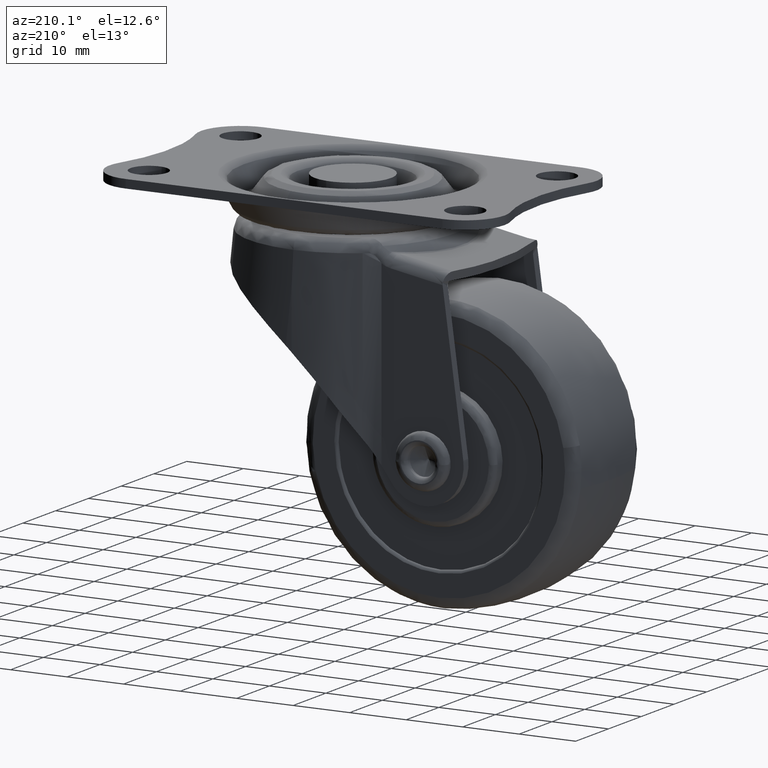
[diagram: clean part render]
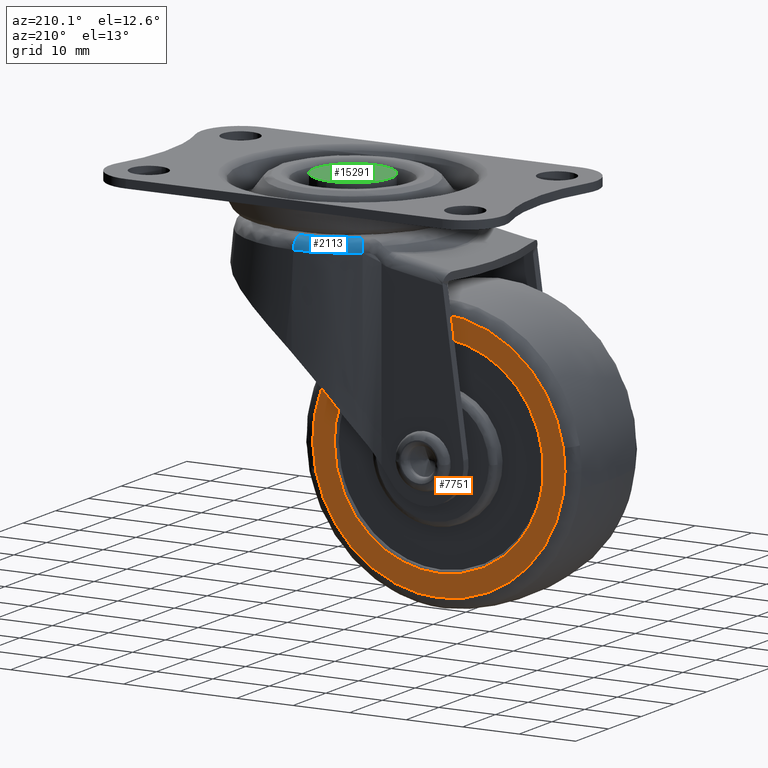
[diagram: same view with three faces highlighted in distinct colors, each labeled with its STEP entity id]
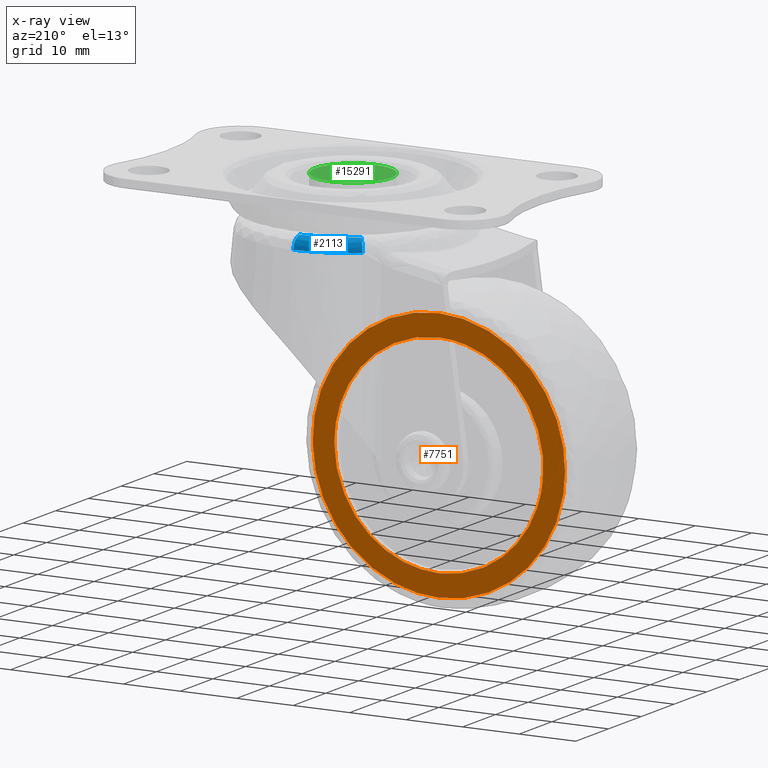
[diagram: x-ray of the same camera — body ghosted, the three highlighted faces saturated]
A machine part, auxiliary view with three faces highlighted in distinct colors.
The next image is the same camera in x-ray (body ghosted, the three faces saturated) — at least one of them is partly hidden behind the body in this view.
Their STEP definitions:

[orange] entity #7751 — the highlighted face is a freeform B-spline surface patch.
#6425=CARTESIAN_POINT('',(0.787601987224201,10.0,-43.385546442987611));
#6426=VERTEX_POINT('',#6425);
#6427=CARTESIAN_POINT('',(-21.0,10.0,-60.828640000000000));
#6428=VERTEX_POINT('',#6427);
#6429=CARTESIAN_POINT('',(0.787601987224201,10.0,-43.385546442987597));
#6430=CARTESIAN_POINT('',(-3.123752911280432,10.0,-60.828640000000000));
#6431=CARTESIAN_POINT('',(-21.0,10.0,-60.828640000000000));
#6439=(BOUNDED_CURVE()B_SPLINE_CURVE(2,(#6429,#6430,#6431),.UNSPECIFIED.,.F.,.U.)B_SPLINE_CURVE_WITH_KNOTS((3,3),(0.287436176724440,0.500000000000000),.UNSPECIFIED.)CURVE()GEOMETRIC_REPRESENTATION_ITEM()RATIONAL_B_SPLINE_CURVE((0.925416950446786,0.750965990390109,1.0))REPRESENTATION_ITEM(''));
#6440=EDGE_CURVE('',#6426,#6428,#6439,.T.);
#6504=CARTESIAN_POINT('',(-43.031355242389857,10.0,-34.868533287541460));
#6505=VERTEX_POINT('',#6504);
#6519=CARTESIAN_POINT('',(-21.0,10.0,-60.828640000000000));
#6520=CARTESIAN_POINT('',(-43.328640000000000,10.0,-60.828639999999993));
#6521=CARTESIAN_POINT('',(-43.328640000000000,10.0,-38.500000000000000));
#6522=CARTESIAN_POINT('',(-43.328640000000007,10.0,-36.672098250918637));
#6523=CARTESIAN_POINT('',(-43.031355242389857,10.0,-34.868533287541460));
#6531=(BOUNDED_CURVE()B_SPLINE_CURVE(2,(#6519,#6520,#6521,#6522,#6523),.UNSPECIFIED.,.F.,.U.)B_SPLINE_CURVE_WITH_KNOTS((3,2,3),(0.500000000000000,0.750000000000000,0.777993891200778),.UNSPECIFIED.)CURVE()GEOMETRIC_REPRESENTATION_ITEM()RATIONAL_B_SPLINE_CURVE((1.0,0.707106781186547,1.0,0.967203116396362,0.941751131923322))REPRESENTATION_ITEM(''));
#6532=EDGE_CURVE('',#6428,#6505,#6531,.T.);
#6566=CARTESIAN_POINT('',(-21.0,10.0,-16.171360000000000));
#6567=VERTEX_POINT('',#6566);
#6568=CARTESIAN_POINT('',(-21.0,10.0,-16.171360000000000));
#6569=CARTESIAN_POINT('',(1.328639999999996,10.0,-16.171360000000004));
#6570=CARTESIAN_POINT('',(1.328639999999999,10.0,-38.500000000000000));
#6571=CARTESIAN_POINT('',(1.328639999999999,10.0,-40.972731193975328));
#6572=CARTESIAN_POINT('',(0.787601987224201,10.000000000000002,-43.385546442987611));
#6580=(BOUNDED_CURVE()B_SPLINE_CURVE(2,(#6568,#6569,#6570,#6571,#6572),.UNSPECIFIED.,.F.,.U.)B_SPLINE_CURVE_WITH_KNOTS((3,2,3),(0.0,0.250000000000000,0.287436176724440),.UNSPECIFIED.)CURVE()GEOMETRIC_REPRESENTATION_ITEM()RATIONAL_B_SPLINE_CURVE((1.0,0.707106781186547,1.0,0.956140790796438,0.925416950446786))REPRESENTATION_ITEM(''));
#6581=EDGE_CURVE('',#6567,#6426,#6580,.T.);
#6583=CARTESIAN_POINT('',(-43.031355242389864,10.000000000000002,-34.868533287541460));
#6584=CARTESIAN_POINT('',(-39.949467555984143,10.0,-16.171360000000007));
#6585=CARTESIAN_POINT('',(-21.0,10.0,-16.171360000000000));
#6593=(BOUNDED_CURVE()B_SPLINE_CURVE(2,(#6583,#6584,#6585),.UNSPECIFIED.,.F.,.U.)B_SPLINE_CURVE_WITH_KNOTS((3,3),(0.777993891200778,1.0),.UNSPECIFIED.)CURVE()GEOMETRIC_REPRESENTATION_ITEM()RATIONAL_B_SPLINE_CURVE((0.941751131923323,0.739903664790185,1.0))REPRESENTATION_ITEM(''));
#6594=EDGE_CURVE('',#6505,#6567,#6593,.T.);
#6660=CARTESIAN_POINT('',(-39.376265316833653,10.0,-40.636088242484213));
#6661=VERTEX_POINT('',#6660);
#6662=CARTESIAN_POINT('',(-21.0,10.0,-20.0));
#6663=VERTEX_POINT('',#6662);
#6664=CARTESIAN_POINT('',(-39.376265316833660,10.0,-40.636088242484206));
#6665=CARTESIAN_POINT('',(-39.500000000000000,10.0,-39.571627838324268));
#6666=CARTESIAN_POINT('',(-39.500000000000000,10.0,-38.500000000000000));
#6667=CARTESIAN_POINT('',(-39.500000000000000,10.000000000000002,-19.999999999999996));
#6668=CARTESIAN_POINT('',(-21.0,10.0,-20.0));
#6676=(BOUNDED_CURVE()B_SPLINE_CURVE(2,(#6664,#6665,#6666,#6667,#6668),.UNSPECIFIED.,.F.,.U.)B_SPLINE_CURVE_WITH_KNOTS((3,2,3),(0.729999999999753,0.750000000000000,1.0),.UNSPECIFIED.)CURVE()GEOMETRIC_REPRESENTATION_ITEM()RATIONAL_B_SPLINE_CURVE((0.956886118190174,0.976568542494635,1.0,0.707106781186548,1.0))REPRESENTATION_ITEM(''));
#6677=EDGE_CURVE('',#6661,#6663,#6676,.T.);
#6679=CARTESIAN_POINT('',(-2.500000000008660,10.0,-38.500000000000000));
#6680=VERTEX_POINT('',#6679);
#6681=CARTESIAN_POINT('',(-21.0,10.0,-20.0));
#6682=CARTESIAN_POINT('',(-2.499999999999996,10.000000000000002,-20.0));
#6683=CARTESIAN_POINT('',(-2.500000000008660,10.0,-38.500000000000000));
#6691=(BOUNDED_CURVE()B_SPLINE_CURVE(2,(#6681,#6682,#6683),.UNSPECIFIED.,.F.,.U.)B_SPLINE_CURVE_WITH_KNOTS((3,3),(0.0,0.250000000000000),.UNSPECIFIED.)CURVE()GEOMETRIC_REPRESENTATION_ITEM()RATIONAL_B_SPLINE_CURVE((1.0,0.707106781186547,1.0))REPRESENTATION_ITEM(''));
#6692=EDGE_CURVE('',#6663,#6680,#6691,.T.);
#6780=CARTESIAN_POINT('',(-21.0,10.0,-56.999999999999993));
#6781=VERTEX_POINT('',#6780);
#6782=CARTESIAN_POINT('',(-21.0,10.0,-56.999999999999993));
#6783=CARTESIAN_POINT('',(-37.474096465274201,10.0,-56.999999999999979));
#6784=CARTESIAN_POINT('',(-39.376265316833653,10.0,-40.636088242484213));
#6792=(BOUNDED_CURVE()B_SPLINE_CURVE(2,(#6782,#6783,#6784),.UNSPECIFIED.,.F.,.U.)B_SPLINE_CURVE_WITH_KNOTS((3,3),(0.500000000000000,0.729999999999753),.UNSPECIFIED.)CURVE()GEOMETRIC_REPRESENTATION_ITEM()RATIONAL_B_SPLINE_CURVE((1.0,0.730538238691914,0.956886118190173))REPRESENTATION_ITEM(''));
#6793=EDGE_CURVE('',#6781,#6661,#6792,.T.);
#6825=CARTESIAN_POINT('',(-2.500000000008660,10.0,-38.500000000000000));
#6826=CARTESIAN_POINT('',(-2.500000000000001,10.000000000000002,-56.999999999999986));
#6827=CARTESIAN_POINT('',(-21.0,10.0,-56.999999999999993));
#6835=(BOUNDED_CURVE()B_SPLINE_CURVE(2,(#6825,#6826,#6827),.UNSPECIFIED.,.F.,.U.)B_SPLINE_CURVE_WITH_KNOTS((3,3),(0.250000000000000,0.500000000000000),.UNSPECIFIED.)CURVE()GEOMETRIC_REPRESENTATION_ITEM()RATIONAL_B_SPLINE_CURVE((1.0,0.707106781186548,1.0))REPRESENTATION_ITEM(''));
#6836=EDGE_CURVE('',#6680,#6781,#6835,.T.);
#7734=CARTESIAN_POINT('',(-45.557899703705772,10.0,-63.059271049445520));
#7735=CARTESIAN_POINT('',(-45.557899703705772,10.0,-13.940727752752890));
#7736=CARTESIAN_POINT('',(3.555305269641475,10.0,-63.059271049445520));
#7737=CARTESIAN_POINT('',(3.555305269641475,10.0,-13.940727752752890));
#7738=B_SPLINE_SURFACE_WITH_KNOTS('',1,1,((#7734,#7736),(#7735,#7737)),.UNSPECIFIED.,.F.,.F.,.U.,(2,2),(2,2),(0.0,49.118543296692643),(0.0,49.113204973347237),.UNSPECIFIED.);
#7739=ORIENTED_EDGE('',*,*,#6581,.T.);
#7740=ORIENTED_EDGE('',*,*,#6440,.T.);
#7741=ORIENTED_EDGE('',*,*,#6532,.T.);
#7742=ORIENTED_EDGE('',*,*,#6594,.T.);
#7743=EDGE_LOOP('',(#7739,#7740,#7741,#7742));
#7744=FACE_OUTER_BOUND('',#7743,.T.);
#7745=ORIENTED_EDGE('',*,*,#6692,.F.);
#7746=ORIENTED_EDGE('',*,*,#6677,.F.);
#7747=ORIENTED_EDGE('',*,*,#6793,.F.);
#7748=ORIENTED_EDGE('',*,*,#6836,.F.);
#7749=EDGE_LOOP('',(#7745,#7746,#7747,#7748));
#7750=FACE_BOUND('',#7749,.T.);
#7751=ADVANCED_FACE('',(#7744,#7750),#7738,.T.);

[blue] entity #2113 — the highlighted face is a freeform B-spline surface patch.
#1997=CARTESIAN_POINT('',(-9.491495446955621,13.740506329113940,-4.899998799999991));
#1998=VERTEX_POINT('',#1997);
#1999=CARTESIAN_POINT('',(-10.628201488507200,15.386075949367100,-6.899998800000031));
#2000=VERTEX_POINT('',#1999);
#2001=CARTESIAN_POINT('',(-9.491495446955621,13.740506329113940,-4.899998799999991));
#2002=CARTESIAN_POINT('',(-9.962334505797722,14.422123583651949,-4.899998799999990));
#2003=CARTESIAN_POINT('',(-10.295267997152459,14.904099766509541,-5.485785237626909));
#2004=CARTESIAN_POINT('',(-10.628201488507193,15.386075949367113,-6.071571675253813));
#2005=CARTESIAN_POINT('',(-10.628201488507189,15.386075949367109,-6.899998799999991));
#2013=(BOUNDED_CURVE()B_SPLINE_CURVE(2,(#2001,#2002,#2003,#2004,#2005),.UNSPECIFIED.,.F.,.U.)B_SPLINE_CURVE_WITH_KNOTS((3,2,3),(0.0,0.500000000000000,1.0),.UNSPECIFIED.)CURVE()GEOMETRIC_REPRESENTATION_ITEM()RATIONAL_B_SPLINE_CURVE((1.0,0.923879532511285,1.0,0.923879532511285,1.0))REPRESENTATION_ITEM(''));
#2014=EDGE_CURVE('',#1998,#2000,#2013,.T.);
#2046=CARTESIAN_POINT('',(0.241136427556912,18.693601555805426,-7.039101435730383));
#2047=CARTESIAN_POINT('',(-6.019442287799012,18.774359326390883,-7.039101435730382));
#2048=CARTESIAN_POINT('',(-11.065901395474803,15.068334752371774,-7.039101435730382));
#2049=CARTESIAN_POINT('',(0.243200147086528,18.853587133266437,-4.744228601162883));
#2050=CARTESIAN_POINT('',(-6.070958521711024,18.935036053629709,-4.744228601162883));
#2051=CARTESIAN_POINT('',(-11.160606774724313,15.197294184268161,-4.744228601162883));
#2052=CARTESIAN_POINT('',(0.213600694050038,16.558950910361819,-4.904881791867640));
#2053=CARTESIAN_POINT('',(-5.332073065420876,16.630486828936046,-4.904881791867640));
#2054=CARTESIAN_POINT('',(-9.802269372199460,13.347658808312108,-4.904881791867640));
#2062=(BOUNDED_SURFACE()B_SPLINE_SURFACE(2,2,((#2046,#2049,#2052),(#2047,#2050,#2053),(#2048,#2051,#2054)),.UNSPECIFIED.,.F.,.F.,.U.)B_SPLINE_SURFACE_WITH_KNOTS((3,3),(3,3),(0.0,12.189482367049051),(0.0,3.645505241868853),.UNSPECIFIED.)GEOMETRIC_REPRESENTATION_ITEM()RATIONAL_B_SPLINE_SURFACE(((0.866294695341911,0.568418632613292,0.866407255966526),(0.820930004477503,0.538652623784282,0.821036670713099),(0.865195751765513,0.567697561587030,0.865308169600640)))REPRESENTATION_ITEM('')SURFACE());
#2063=CARTESIAN_POINT('',(-0.269767593870927,16.697232862411848,-4.899998799999991));
#2064=VERTEX_POINT('',#2063);
#2065=CARTESIAN_POINT('',(-0.302155121902147,18.697558465012850,-6.898265581301771));
#2066=VERTEX_POINT('',#2065);
#2067=CARTESIAN_POINT('',(-0.269767593870927,16.697232862411848,-4.899998799999991));
#2068=CARTESIAN_POINT('',(-0.271434879384473,16.805880283377981,-4.905233305892039));
#2069=CARTESIAN_POINT('',(-0.274793887625128,17.024767558164580,-4.915779039231834));
#2070=CARTESIAN_POINT('',(-0.278971694074781,17.344995977322000,-4.999404642356681));
#2071=CARTESIAN_POINT('',(-0.282845477629746,17.647282964817119,-5.130538095690502));
#2072=CARTESIAN_POINT('',(-0.286452235579781,17.919424922950778,-5.307193362232478));
#2073=CARTESIAN_POINT('',(-0.289867768312886,18.152471360442000,-5.517730034532512));
#2074=CARTESIAN_POINT('',(-0.293068977724697,18.341649298002089,-5.750447121454727));
#2075=CARTESIAN_POINT('',(-0.295978315985417,18.486233490771578,-5.993302506488512));
#2076=CARTESIAN_POINT('',(-0.298491154458642,18.589134333065150,-6.235846060669402));
#2077=CARTESIAN_POINT('',(-0.300445064816710,18.654624809316040,-6.469876970702661));
#2078=CARTESIAN_POINT('',(-0.301816713003588,18.691036376907121,-6.689677831017840));
#2079=CARTESIAN_POINT('',(-0.302045962805561,18.695454663225998,-6.830982331727368));
#2080=CARTESIAN_POINT('',(-0.302155121902147,18.697558465012850,-6.898265581301771));
#2081=B_SPLINE_CURVE_WITH_KNOTS('',3,(#2067,#2068,#2069,#2070,#2071,#2072,#2073,#2074,#2075,#2076,#2077,#2078,#2079,#2080),.UNSPECIFIED.,.F.,.U.,(4,1,1,1,1,1,1,1,1,1,1,4),(0.0,0.103854901566496,0.209231992577236,0.314482424492494,0.417948186046833,0.518104524269940,0.613674602906178,0.703697063217025,0.787542476615160,0.864887888203788,0.935665305118648,1.000000000000000),.UNSPECIFIED.);
#2082=EDGE_CURVE('',#2064,#2066,#2081,.T.);
#2083=ORIENTED_EDGE('',*,*,#2082,.T.);
#2084=CARTESIAN_POINT('',(-10.628201488507200,15.386075949367100,-6.899998800000031));
#2085=CARTESIAN_POINT('',(-5.966805038934866,18.606017071681563,-6.899132190650901));
#2086=CARTESIAN_POINT('',(-0.302155121902147,18.697558465012850,-6.898265581301771));
#2094=(BOUNDED_CURVE()B_SPLINE_CURVE(2,(#2084,#2085,#2086),.UNSPECIFIED.,.F.,.U.)CURVE()GEOMETRIC_REPRESENTATION_ITEM()QUASI_UNIFORM_CURVE()RATIONAL_B_SPLINE_CURVE((1.0,0.957042543494062,1.0))REPRESENTATION_ITEM(''));
#2095=EDGE_CURVE('',#2000,#2066,#2094,.T.);
#2096=ORIENTED_EDGE('',*,*,#2095,.F.);
#2097=ORIENTED_EDGE('',*,*,#2014,.F.);
#2098=CARTESIAN_POINT('',(-0.269767593870927,16.697232862411848,-4.899998799999991));
#2099=CARTESIAN_POINT('',(-5.328611483805023,16.615794087754622,-4.899998799999990));
#2100=CARTESIAN_POINT('',(-9.491495446955621,13.740506329113940,-4.899998799999991));
#2108=(BOUNDED_CURVE()B_SPLINE_CURVE(2,(#2098,#2099,#2100),.UNSPECIFIED.,.F.,.U.)CURVE()GEOMETRIC_REPRESENTATION_ITEM()QUASI_UNIFORM_CURVE()RATIONAL_B_SPLINE_CURVE((1.0,0.957042005399493,1.0))REPRESENTATION_ITEM(''));
#2109=EDGE_CURVE('',#2064,#1998,#2108,.T.);
#2110=ORIENTED_EDGE('',*,*,#2109,.F.);
#2111=EDGE_LOOP('',(#2083,#2096,#2097,#2110));
#2112=FACE_OUTER_BOUND('',#2111,.T.);
#2113=ADVANCED_FACE('',(#2112),#2062,.T.);

[green] entity #15291 — the highlighted face is a freeform B-spline surface patch.
#14375=CARTESIAN_POINT('',(0.837864014110946,6.697796943313352,1.500000000000000));
#14376=VERTEX_POINT('',#14375);
#14382=CARTESIAN_POINT('',(6.750000000000000,-1.421085E-014,1.500000000000000));
#14383=VERTEX_POINT('',#14382);
#14384=CARTESIAN_POINT('',(0.837864014110946,6.697796943313352,1.500000000000000));
#14385=CARTESIAN_POINT('',(6.750000000000002,5.958215550884756,1.500000000000000));
#14386=CARTESIAN_POINT('',(6.750000000000000,-1.421085E-014,1.500000000000000));
#14394=(BOUNDED_CURVE()B_SPLINE_CURVE(2,(#14384,#14385,#14386),.UNSPECIFIED.,.F.,.U.)B_SPLINE_CURVE_WITH_KNOTS((3,3),(0.271473928974332,0.500000000000000),.UNSPECIFIED.)CURVE()GEOMETRIC_REPRESENTATION_ITEM()RATIONAL_B_SPLINE_CURVE((0.954005430267673,0.732265053898002,1.0))REPRESENTATION_ITEM(''));
#14395=EDGE_CURVE('',#14376,#14383,#14394,.T.);
#14397=CARTESIAN_POINT('',(-0.058904114742217,-6.749742980682051,1.500000000000000));
#14398=VERTEX_POINT('',#14397);
#14399=CARTESIAN_POINT('',(6.750000000000000,-1.421085E-014,1.500000000000000));
#14400=CARTESIAN_POINT('',(6.750000000000000,-6.750000000000014,1.500000000000000));
#14401=CARTESIAN_POINT('',(0.0,-6.750000000000014,1.500000000000000));
#14402=CARTESIAN_POINT('',(-0.029452618167918,-6.750000000000014,1.500000000000000));
#14403=CARTESIAN_POINT('',(-0.058904114742217,-6.749742980682051,1.500000000000000));
#14411=(BOUNDED_CURVE()B_SPLINE_CURVE(2,(#14399,#14400,#14401,#14402,#14403),.UNSPECIFIED.,.F.,.U.)B_SPLINE_CURVE_WITH_KNOTS((3,2,3),(0.500000000000000,0.750000000000000,0.751539894341677),.UNSPECIFIED.)CURVE()GEOMETRIC_REPRESENTATION_ITEM()RATIONAL_B_SPLINE_CURVE((1.0,0.707106781186548,1.0,0.998195901558535,0.996414028084924))REPRESENTATION_ITEM(''));
#14412=EDGE_CURVE('',#14383,#14398,#14411,.T.);
#14492=CARTESIAN_POINT('',(-6.750000000000000,-1.421085E-014,1.500000000000000));
#14493=VERTEX_POINT('',#14492);
#14494=CARTESIAN_POINT('',(-0.058904114742217,-6.749742980682051,1.500000000000000));
#14495=CARTESIAN_POINT('',(-6.750000000000000,-6.691350671261939,1.500000000000000));
#14496=CARTESIAN_POINT('',(-6.750000000000000,-1.421085E-014,1.500000000000000));
#14504=(BOUNDED_CURVE()B_SPLINE_CURVE(2,(#14494,#14495,#14496),.UNSPECIFIED.,.F.,.U.)B_SPLINE_CURVE_WITH_KNOTS((3,3),(0.751539894341678,1.0),.UNSPECIFIED.)CURVE()GEOMETRIC_REPRESENTATION_ITEM()RATIONAL_B_SPLINE_CURVE((0.996414028084922,0.708910879628014,1.0))REPRESENTATION_ITEM(''));
#14505=EDGE_CURVE('',#14398,#14493,#14504,.T.);
#14507=CARTESIAN_POINT('',(-6.750000000000000,-1.421085E-014,1.500000000000000));
#14508=CARTESIAN_POINT('',(-6.750000000000000,6.749999999999986,1.500000000000000));
#14509=CARTESIAN_POINT('',(0.0,6.749999999999986,1.500000000000000));
#14510=CARTESIAN_POINT('',(0.420558260924027,6.749999999999986,1.500000000000000));
#14511=CARTESIAN_POINT('',(0.837864014110946,6.697796943313352,1.500000000000000));
#14519=(BOUNDED_CURVE()B_SPLINE_CURVE(2,(#14507,#14508,#14509,#14510,#14511),.UNSPECIFIED.,.F.,.U.)B_SPLINE_CURVE_WITH_KNOTS((3,2,3),(0.0,0.250000000000000,0.271473928974332),.UNSPECIFIED.)CURVE()GEOMETRIC_REPRESENTATION_ITEM()RATIONAL_B_SPLINE_CURVE((1.0,0.707106781186548,1.0,0.974841727288546,0.954005430267673))REPRESENTATION_ITEM(''));
#14520=EDGE_CURVE('',#14493,#14376,#14519,.T.);
#15280=CARTESIAN_POINT('',(-7.424324973834381,-7.424033127408769,1.500000000000000));
#15281=CARTESIAN_POINT('',(7.424325335932597,-7.424033127408769,1.500000000000000));
#15282=CARTESIAN_POINT('',(-7.424324973834381,7.423849181514497,1.500000000000000));
#15283=CARTESIAN_POINT('',(7.424325335932597,7.423849181514497,1.500000000000000));
#15284=B_SPLINE_SURFACE_WITH_KNOTS('',1,1,((#15280,#15282),(#15281,#15283)),.UNSPECIFIED.,.F.,.F.,.U.,(2,2),(2,2),(0.0,14.848650309766979),(0.0,14.847882308923269),.UNSPECIFIED.);
#15285=ORIENTED_EDGE('',*,*,#14505,.F.);
#15286=ORIENTED_EDGE('',*,*,#14412,.F.);
#15287=ORIENTED_EDGE('',*,*,#14395,.F.);
#15288=ORIENTED_EDGE('',*,*,#14520,.F.);
#15289=EDGE_LOOP('',(#15285,#15286,#15287,#15288));
#15290=FACE_OUTER_BOUND('',#15289,.T.);
#15291=ADVANCED_FACE('',(#15290),#15284,.T.);